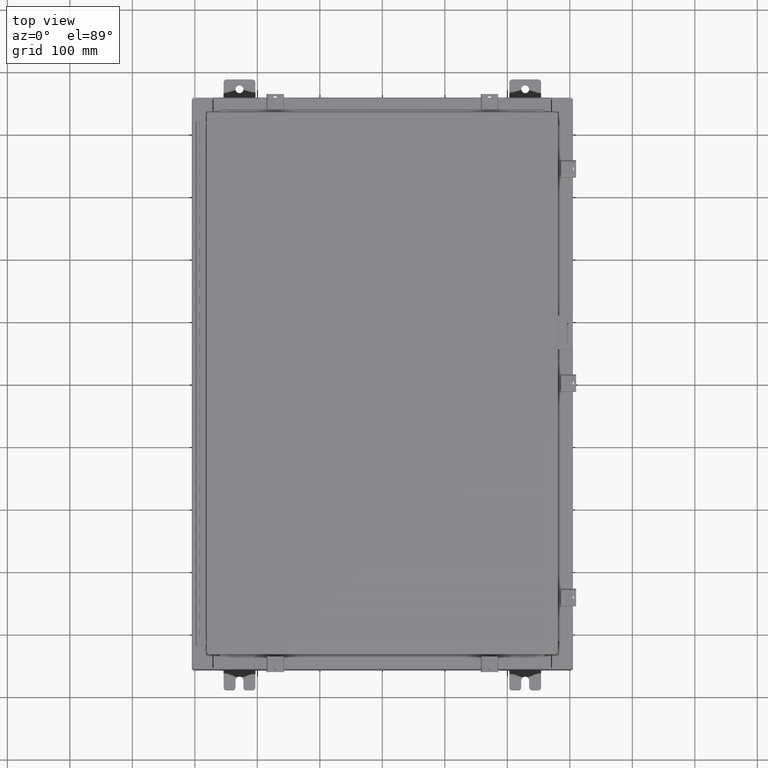
[diagram: clean part render]
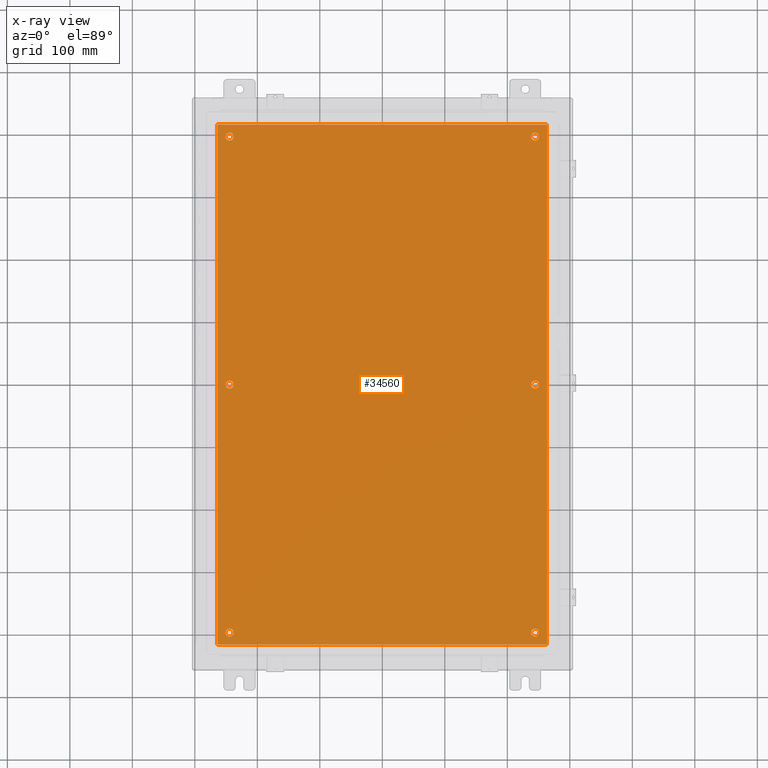
[diagram: x-ray — body ghosted, one internal face saturated and labeled with its STEP entity id]
A machine part, top view, then the same camera in x-ray: the body is ghosted and one INTERNAL B-rep face — a face not visible from any outside direction — is saturated and labeled: STEP entity #34560.
In plain terms, the highlighted planar face has unit normal (0, 0, -1).
Its self-contained STEP definition (entity closure, byte-faithful):
#34 = EDGE_CURVE ( 'NONE', #34630, #18245, #2734, .T. ) ;
#346 = EDGE_CURVE ( 'NONE', #16479, #24942, #40753, .T. ) ;
#1146 = ORIENTED_EDGE ( 'NONE', *, *, #38968, .T. ) ;
#1282 = DIRECTION ( 'NONE',  ( -0.0000000000000000000, -0.0000000000000000000, 1.000000000000000000 ) ) ;
#1373 = VERTEX_POINT ( 'NONE', #41418 ) ;
#1595 = VERTEX_POINT ( 'NONE', #4455 ) ;
#1753 = ORIENTED_EDGE ( 'NONE', *, *, #34, .T. ) ;
#2569 = VECTOR ( 'NONE', #33567, 39.37007874015748100 ) ;
#2592 = FACE_BOUND ( 'NONE', #6902, .T. ) ;
#2690 = AXIS2_PLACEMENT_3D ( 'NONE', #24425, #34296, #31025 ) ;
#2734 = CIRCLE ( 'NONE', #2690, 0.2500000000000008900 ) ;
#3153 = CARTESIAN_POINT ( 'NONE',  ( -9.625000000000007100, -15.62500000000000200, -0.1039999999999999800 ) ) ;
#3641 = ORIENTED_EDGE ( 'NONE', *, *, #37878, .T. ) ;
#4304 = ORIENTED_EDGE ( 'NONE', *, *, #21816, .T. ) ;
#4318 = DIRECTION ( 'NONE',  ( -1.000000000000000000, 0.0000000000000000000, 0.0000000000000000000 ) ) ;
#4426 = VERTEX_POINT ( 'NONE', #11035 ) ;
#4455 = CARTESIAN_POINT ( 'NONE',  ( 9.375000000000007100, 2.650915570591087300E-015, -0.1039999999999999800 ) ) ;
#4456 = PLANE ( 'NONE',  #22917 ) ;
#4478 = ORIENTED_EDGE ( 'NONE', *, *, #37566, .T. ) ;
#4581 = EDGE_CURVE ( 'NONE', #6233, #1595, #30398, .T. ) ;
#5127 = CARTESIAN_POINT ( 'NONE',  ( -9.875000000000007100, 15.62500000000000200, -0.1039999999999999800 ) ) ;
#5689 = CARTESIAN_POINT ( 'NONE',  ( -9.375000000000007100, -15.62500000000000200, -0.1039999999999999800 ) ) ;
#5831 = LINE ( 'NONE', #24119, #37713 ) ;
#6233 = VERTEX_POINT ( 'NONE', #7272 ) ;
#6534 = CARTESIAN_POINT ( 'NONE',  ( 10.38300000000000100, 16.38300000000000300, -0.1040000000000009100 ) ) ;
#6902 = EDGE_LOOP ( 'NONE', ( #31828, #1753 ) ) ;
#7151 = EDGE_CURVE ( 'NONE', #10166, #36228, #14198, .T. ) ;
#7272 = CARTESIAN_POINT ( 'NONE',  ( 9.875000000000007100, 2.620299400612403500E-015, -0.1039999999999999800 ) ) ;
#7994 = DIRECTION ( 'NONE',  ( -0.0000000000000000000, -0.0000000000000000000, 1.000000000000000000 ) ) ;
#8138 = VERTEX_POINT ( 'NONE', #27404 ) ;
#8384 = ORIENTED_EDGE ( 'NONE', *, *, #25259, .T. ) ;
#8577 = CIRCLE ( 'NONE', #24831, 0.2499999999999998100 ) ;
#8899 = ORIENTED_EDGE ( 'NONE', *, *, #28944, .T. ) ;
#9268 = VERTEX_POINT ( 'NONE', #21842 ) ;
#9558 = ORIENTED_EDGE ( 'NONE', *, *, #18630, .F. ) ;
#9885 = AXIS2_PLACEMENT_3D ( 'NONE', #21737, #34926, #13662 ) ;
#10166 = VERTEX_POINT ( 'NONE', #32950 ) ;
#10531 = EDGE_LOOP ( 'NONE', ( #18490, #4304 ) ) ;
#11035 = CARTESIAN_POINT ( 'NONE',  ( 9.375000000000007100, 15.62500000000000200, -0.1039999999999999800 ) ) ;
#11087 = DIRECTION ( 'NONE',  ( -1.000000000000000000, 0.0000000000000000000, -0.0000000000000000000 ) ) ;
#11357 = FACE_BOUND ( 'NONE', #10531, .T. ) ;
#11864 = DIRECTION ( 'NONE',  ( -0.0000000000000000000, -0.0000000000000000000, 1.000000000000000000 ) ) ;
#12229 = AXIS2_PLACEMENT_3D ( 'NONE', #13844, #35875, #27541 ) ;
#12502 = EDGE_CURVE ( 'NONE', #23581, #28949, #26213, .T. ) ;
#12581 = DIRECTION ( 'NONE',  ( -0.0000000000000000000, -0.0000000000000000000, 1.000000000000000000 ) ) ;
#12709 = DIRECTION ( 'NONE',  ( -1.000000000000000000, 0.0000000000000000000, 0.0000000000000000000 ) ) ;
#13273 = AXIS2_PLACEMENT_3D ( 'NONE', #27582, #7994, #30902 ) ;
#13662 = DIRECTION ( 'NONE',  ( -1.000000000000000000, 0.0000000000000000000, 0.0000000000000000000 ) ) ;
#13844 = CARTESIAN_POINT ( 'NONE',  ( -9.625000000000007100, 15.62500000000000200, -0.1039999999999999800 ) ) ;
#14075 = AXIS2_PLACEMENT_3D ( 'NONE', #32211, #12581, #35530 ) ;
#14102 = EDGE_LOOP ( 'NONE', ( #1146, #4478 ) ) ;
#14140 = CARTESIAN_POINT ( 'NONE',  ( 0.0000000000000000000, 0.0000000000000000000, -0.1039999999999999800 ) ) ;
#14198 = LINE ( 'NONE', #34119, #2569 ) ;
#14401 = VECTOR ( 'NONE', #24856, 39.37007874015748100 ) ;
#14629 = CARTESIAN_POINT ( 'NONE',  ( -9.375000000000007100, 15.62500000000000200, -0.1039999999999999800 ) ) ;
#15181 = CARTESIAN_POINT ( 'NONE',  ( -9.625000000000005300, 2.628543122537473900E-016, -0.1039999999999999800 ) ) ;
#16225 = DIRECTION ( 'NONE',  ( -0.0000000000000000000, -0.0000000000000000000, 1.000000000000000000 ) ) ;
#16271 = CIRCLE ( 'NONE', #13273, 0.2499999999999998100 ) ;
#16324 = EDGE_LOOP ( 'NONE', ( #16475, #22313, #9558, #30356 ) ) ;
#16352 = LINE ( 'NONE', #36898, #14401 ) ;
#16475 = ORIENTED_EDGE ( 'NONE', *, *, #7151, .F. ) ;
#16479 = VERTEX_POINT ( 'NONE', #16956 ) ;
#16846 = DIRECTION ( 'NONE',  ( -1.000000000000000000, 0.0000000000000000000, 0.0000000000000000000 ) ) ;
#16956 = CARTESIAN_POINT ( 'NONE',  ( -9.375000000000005300, 2.628543122537473900E-016, -0.1039999999999999800 ) ) ;
#17553 = CARTESIAN_POINT ( 'NONE',  ( 9.625000000000007100, 2.620299400612403500E-015, -0.1039999999999999800 ) ) ;
#18245 = VERTEX_POINT ( 'NONE', #5689 ) ;
#18301 = LINE ( 'NONE', #22583, #34857 ) ;
#18490 = ORIENTED_EDGE ( 'NONE', *, *, #4581, .T. ) ;
#18630 = EDGE_CURVE ( 'NONE', #28675, #31110, #16352, .T. ) ;
#18685 = AXIS2_PLACEMENT_3D ( 'NONE', #40122, #37772, #4318 ) ;
#18863 = FACE_OUTER_BOUND ( 'NONE', #16324, .T. ) ;
#19597 = EDGE_CURVE ( 'NONE', #28949, #23581, #38598, .T. ) ;
#20569 = ORIENTED_EDGE ( 'NONE', *, *, #12502, .T. ) ;
#21737 = CARTESIAN_POINT ( 'NONE',  ( 9.625000000000007100, -15.62500000000000200, -0.1039999999999999800 ) ) ;
#21816 = EDGE_CURVE ( 'NONE', #1595, #6233, #8577, .T. ) ;
#21842 = CARTESIAN_POINT ( 'NONE',  ( 9.875000000000007100, 15.62500000000000200, -0.1039999999999999800 ) ) ;
#21877 = CARTESIAN_POINT ( 'NONE',  ( -10.38300000000000100, 16.38300000000000300, -0.1039999999999987600 ) ) ;
#21937 = FACE_BOUND ( 'NONE', #41115, .T. ) ;
#22313 = ORIENTED_EDGE ( 'NONE', *, *, #39473, .F. ) ;
#22583 = CARTESIAN_POINT ( 'NONE',  ( -10.38300000000000100, 16.38300000000000300, -0.1039999999999987600 ) ) ;
#22740 = EDGE_CURVE ( 'NONE', #36228, #28675, #5831, .T. ) ;
#22917 = AXIS2_PLACEMENT_3D ( 'NONE', #14140, #30682, #11087 ) ;
#23088 = AXIS2_PLACEMENT_3D ( 'NONE', #36044, #16225, #39389 ) ;
#23329 = CARTESIAN_POINT ( 'NONE',  ( -9.625000000000007100, 15.62500000000000200, -0.1039999999999999800 ) ) ;
#23581 = VERTEX_POINT ( 'NONE', #5127 ) ;
#23758 = CIRCLE ( 'NONE', #24163, 0.2500000000000008900 ) ;
#24112 = DIRECTION ( 'NONE',  ( -1.000000000000000000, 0.0000000000000000000, 0.0000000000000000000 ) ) ;
#24119 = CARTESIAN_POINT ( 'NONE',  ( 10.38300000000000100, -16.38299999999999600, -0.1040000000000009100 ) ) ;
#24163 = AXIS2_PLACEMENT_3D ( 'NONE', #15181, #33256, #16846 ) ;
#24425 = CARTESIAN_POINT ( 'NONE',  ( -9.625000000000007100, -15.62500000000000200, -0.1039999999999999800 ) ) ;
#24831 = AXIS2_PLACEMENT_3D ( 'NONE', #17553, #36025, #24112 ) ;
#24856 = DIRECTION ( 'NONE',  ( -1.000000000000000000, -0.0000000000000000000, -0.0000000000000000000 ) ) ;
#24942 = VERTEX_POINT ( 'NONE', #37890 ) ;
#25078 = ORIENTED_EDGE ( 'NONE', *, *, #19597, .T. ) ;
#25259 = EDGE_CURVE ( 'NONE', #8138, #1373, #32080, .T. ) ;
#25838 = CARTESIAN_POINT ( 'NONE',  ( 9.625000000000007100, 2.620299400612403500E-015, -0.1039999999999999800 ) ) ;
#26213 = CIRCLE ( 'NONE', #31009, 0.2500000000000008900 ) ;
#27404 = CARTESIAN_POINT ( 'NONE',  ( 9.875000000000007100, -15.62500000000000200, -0.1039999999999999800 ) ) ;
#27541 = DIRECTION ( 'NONE',  ( -1.000000000000000000, 0.0000000000000000000, 0.0000000000000000000 ) ) ;
#27582 = CARTESIAN_POINT ( 'NONE',  ( 9.625000000000007100, -15.62500000000000200, -0.1039999999999999800 ) ) ;
#27734 = ORIENTED_EDGE ( 'NONE', *, *, #346, .T. ) ;
#27737 = FACE_BOUND ( 'NONE', #14102, .T. ) ;
#27974 = DIRECTION ( 'NONE',  ( 0.0000000000000000000, 1.000000000000000000, 0.0000000000000000000 ) ) ;
#28041 = DIRECTION ( 'NONE',  ( -1.000000000000000000, 0.0000000000000000000, 0.0000000000000000000 ) ) ;
#28068 = EDGE_CURVE ( 'NONE', #18245, #34630, #40256, .T. ) ;
#28540 = AXIS2_PLACEMENT_3D ( 'NONE', #3153, #1282, #29055 ) ;
#28675 = VERTEX_POINT ( 'NONE', #6534 ) ;
#28738 = CIRCLE ( 'NONE', #14075, 0.2499999999999998100 ) ;
#28768 = FACE_BOUND ( 'NONE', #29126, .T. ) ;
#28944 = EDGE_CURVE ( 'NONE', #24942, #16479, #23758, .T. ) ;
#28949 = VERTEX_POINT ( 'NONE', #14629 ) ;
#29055 = DIRECTION ( 'NONE',  ( -1.000000000000000000, 0.0000000000000000000, 0.0000000000000000000 ) ) ;
#29126 = EDGE_LOOP ( 'NONE', ( #25078, #20569 ) ) ;
#29202 = DIRECTION ( 'NONE',  ( 0.0000000000000000000, -1.000000000000000000, 0.0000000000000000000 ) ) ;
#30356 = ORIENTED_EDGE ( 'NONE', *, *, #22740, .F. ) ;
#30398 = CIRCLE ( 'NONE', #36237, 0.2499999999999998100 ) ;
#30682 = DIRECTION ( 'NONE',  ( 0.0000000000000000000, 0.0000000000000000000, -1.000000000000000000 ) ) ;
#30902 = DIRECTION ( 'NONE',  ( -1.000000000000000000, 0.0000000000000000000, 0.0000000000000000000 ) ) ;
#31009 = AXIS2_PLACEMENT_3D ( 'NONE', #23329, #41286, #12709 ) ;
#31025 = DIRECTION ( 'NONE',  ( -1.000000000000000000, 0.0000000000000000000, 0.0000000000000000000 ) ) ;
#31110 = VERTEX_POINT ( 'NONE', #21877 ) ;
#31828 = ORIENTED_EDGE ( 'NONE', *, *, #28068, .T. ) ;
#32080 = CIRCLE ( 'NONE', #9885, 0.2499999999999998100 ) ;
#32211 = CARTESIAN_POINT ( 'NONE',  ( 9.625000000000007100, 15.62500000000000200, -0.1039999999999999800 ) ) ;
#32950 = CARTESIAN_POINT ( 'NONE',  ( -10.38300000000000100, -16.38299999999999600, -0.1040000000000009100 ) ) ;
#33256 = DIRECTION ( 'NONE',  ( -0.0000000000000000000, -0.0000000000000000000, 1.000000000000000000 ) ) ;
#33567 = DIRECTION ( 'NONE',  ( 1.000000000000000000, -0.0000000000000000000, -0.0000000000000000000 ) ) ;
#34119 = CARTESIAN_POINT ( 'NONE',  ( -10.50000000000000200, -16.38299999999999600, -0.1040000000000009100 ) ) ;
#34296 = DIRECTION ( 'NONE',  ( -0.0000000000000000000, -0.0000000000000000000, 1.000000000000000000 ) ) ;
#34560 = ADVANCED_FACE ( 'NONE', ( #11357, #21937, #2592, #36494, #27737, #28768, #18863 ), #4456, .T. ) ;
#34630 = VERTEX_POINT ( 'NONE', #37788 ) ;
#34857 = VECTOR ( 'NONE', #29202, 39.37007874015748100 ) ;
#34926 = DIRECTION ( 'NONE',  ( -0.0000000000000000000, -0.0000000000000000000, 1.000000000000000000 ) ) ;
#35530 = DIRECTION ( 'NONE',  ( -1.000000000000000000, 0.0000000000000000000, 0.0000000000000000000 ) ) ;
#35875 = DIRECTION ( 'NONE',  ( -0.0000000000000000000, -0.0000000000000000000, 1.000000000000000000 ) ) ;
#36025 = DIRECTION ( 'NONE',  ( -0.0000000000000000000, -0.0000000000000000000, 1.000000000000000000 ) ) ;
#36044 = CARTESIAN_POINT ( 'NONE',  ( 9.625000000000007100, 15.62500000000000200, -0.1039999999999999800 ) ) ;
#36228 = VERTEX_POINT ( 'NONE', #40460 ) ;
#36237 = AXIS2_PLACEMENT_3D ( 'NONE', #25838, #11864, #28041 ) ;
#36494 = FACE_BOUND ( 'NONE', #39213, .T. ) ;
#36898 = CARTESIAN_POINT ( 'NONE',  ( 10.50000000000000400, 16.38299999999999900, -0.1040000000000009100 ) ) ;
#37566 = EDGE_CURVE ( 'NONE', #4426, #9268, #28738, .T. ) ;
#37713 = VECTOR ( 'NONE', #27974, 39.37007874015748100 ) ;
#37772 = DIRECTION ( 'NONE',  ( -0.0000000000000000000, -0.0000000000000000000, 1.000000000000000000 ) ) ;
#37788 = CARTESIAN_POINT ( 'NONE',  ( -9.875000000000007100, -15.62500000000000200, -0.1039999999999999800 ) ) ;
#37878 = EDGE_CURVE ( 'NONE', #1373, #8138, #16271, .T. ) ;
#37890 = CARTESIAN_POINT ( 'NONE',  ( -9.875000000000005300, 2.934704822324310800E-016, -0.1039999999999999800 ) ) ;
#38598 = CIRCLE ( 'NONE', #12229, 0.2500000000000008900 ) ;
#38968 = EDGE_CURVE ( 'NONE', #9268, #4426, #40172, .T. ) ;
#39213 = EDGE_LOOP ( 'NONE', ( #8384, #3641 ) ) ;
#39389 = DIRECTION ( 'NONE',  ( -1.000000000000000000, 0.0000000000000000000, 0.0000000000000000000 ) ) ;
#39473 = EDGE_CURVE ( 'NONE', #31110, #10166, #18301, .T. ) ;
#40122 = CARTESIAN_POINT ( 'NONE',  ( -9.625000000000005300, 2.628543122537473900E-016, -0.1039999999999999800 ) ) ;
#40172 = CIRCLE ( 'NONE', #23088, 0.2499999999999998100 ) ;
#40256 = CIRCLE ( 'NONE', #28540, 0.2500000000000008900 ) ;
#40460 = CARTESIAN_POINT ( 'NONE',  ( 10.38300000000000100, -16.38299999999999600, -0.1040000000000009100 ) ) ;
#40753 = CIRCLE ( 'NONE', #18685, 0.2500000000000008900 ) ;
#41115 = EDGE_LOOP ( 'NONE', ( #27734, #8899 ) ) ;
#41286 = DIRECTION ( 'NONE',  ( -0.0000000000000000000, -0.0000000000000000000, 1.000000000000000000 ) ) ;
#41418 = CARTESIAN_POINT ( 'NONE',  ( 9.375000000000007100, -15.62500000000000200, -0.1039999999999999800 ) ) ;